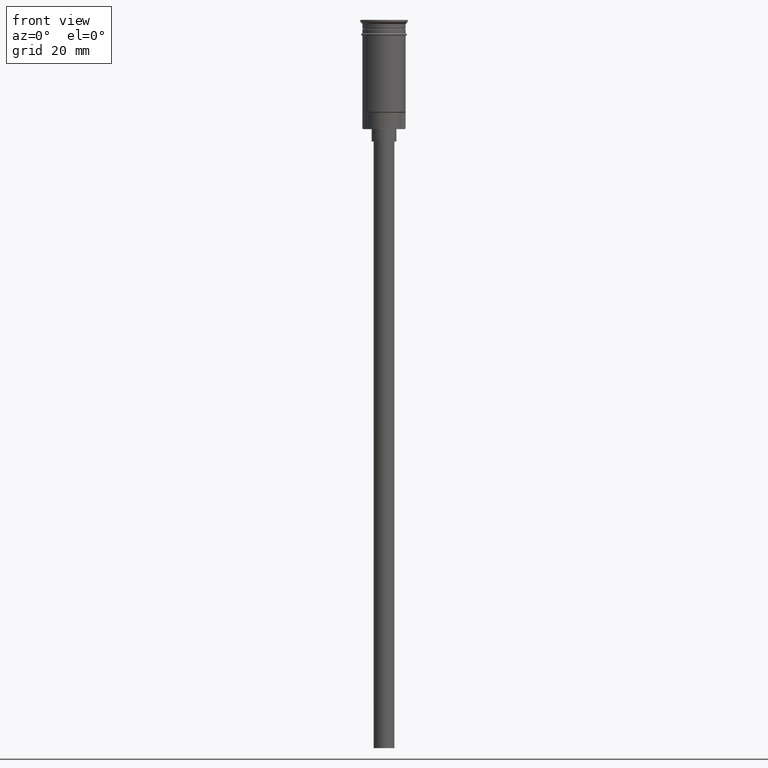
[diagram: clean part render]
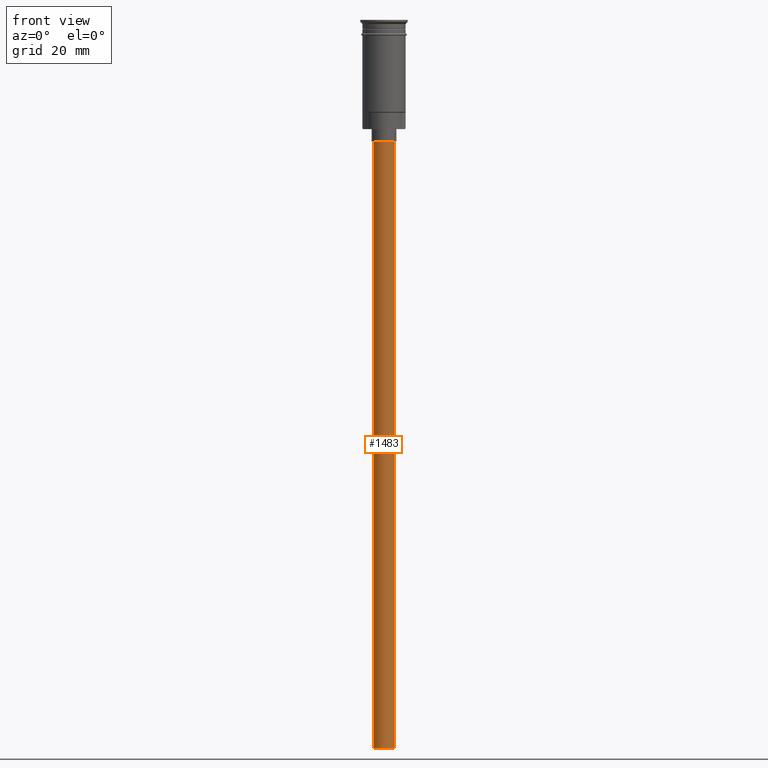
[diagram: same view with one face highlighted and labeled with its STEP entity id]
A machine part, front view. The second image highlights one B-rep face of the part: STEP entity #1483.
In plain terms, the highlighted cylindrical surface (edge-blend (fillet) strip) has radius 2.5 mm, axis along (-0, -0, 1).
Its self-contained STEP definition (entity closure, byte-faithful):
#33 = AXIS2_PLACEMENT_3D ( 'NONE', #736, #743, #255 ) ;
#90 = VERTEX_POINT ( 'NONE', #980 ) ;
#216 = EDGE_CURVE ( 'NONE', #90, #1032, #609, .T. ) ;
#255 = DIRECTION ( 'NONE',  ( -1.000000000000000000, 0.000000000000000000, 0.000000000000000000 ) ) ;
#312 = VECTOR ( 'NONE', #1316, 1000.000000000000000 ) ;
#461 = CARTESIAN_POINT ( 'NONE',  ( 2.500000000000000000, 0.000000000000000000, -176.5000000000000000 ) ) ;
#468 = ORIENTED_EDGE ( 'NONE', *, *, #216, .T. ) ;
#476 = DIRECTION ( 'NONE',  ( 1.000000000000000000, 0.000000000000000000, 0.000000000000000000 ) ) ;
#516 = CARTESIAN_POINT ( 'NONE',  ( -2.500000000000000000, 3.061616997868383141E-16, -29.50000000000000000 ) ) ;
#586 = VECTOR ( 'NONE', #1435, 1000.000000000000000 ) ;
#598 = DIRECTION ( 'NONE',  ( -1.000000000000000000, 0.000000000000000000, 0.000000000000000000 ) ) ;
#609 = CIRCLE ( 'NONE', #905, 2.500000000000000000 ) ;
#735 = EDGE_CURVE ( 'NONE', #1460, #1032, #1050, .T. ) ;
#736 = CARTESIAN_POINT ( 'NONE',  ( 0.000000000000000000, 0.000000000000000000, -176.5000000000000000 ) ) ;
#743 = DIRECTION ( 'NONE',  ( 0.000000000000000000, 0.000000000000000000, -1.000000000000000000 ) ) ;
#757 = DIRECTION ( 'NONE',  ( 0.000000000000000000, 0.000000000000000000, -1.000000000000000000 ) ) ;
#836 = ORIENTED_EDGE ( 'NONE', *, *, #1326, .T. ) ;
#884 = CIRCLE ( 'NONE', #33, 2.500000000000000000 ) ;
#905 = AXIS2_PLACEMENT_3D ( 'NONE', #1595, #757, #598 ) ;
#930 = AXIS2_PLACEMENT_3D ( 'NONE', #1476, #1496, #476 ) ;
#980 = CARTESIAN_POINT ( 'NONE',  ( 2.500000000000000000, 0.000000000000000000, -29.50000000000000000 ) ) ;
#1032 = VERTEX_POINT ( 'NONE', #516 ) ;
#1050 = LINE ( 'NONE', #1541, #586 ) ;
#1071 = EDGE_CURVE ( 'NONE', #1328, #1460, #884, .T. ) ;
#1095 = LINE ( 'NONE', #461, #312 ) ;
#1247 = CYLINDRICAL_SURFACE ( 'NONE', #930, 2.500000000000000000 ) ;
#1248 = EDGE_LOOP ( 'NONE', ( #1570, #1539, #836, #468 ) ) ;
#1316 = DIRECTION ( 'NONE',  ( -0.000000000000000000, -0.000000000000000000, 1.000000000000000000 ) ) ;
#1326 = EDGE_CURVE ( 'NONE', #1328, #90, #1095, .T. ) ;
#1328 = VERTEX_POINT ( 'NONE', #1468 ) ;
#1374 = FACE_OUTER_BOUND ( 'NONE', #1248, .T. ) ;
#1435 = DIRECTION ( 'NONE',  ( -0.000000000000000000, -0.000000000000000000, 1.000000000000000000 ) ) ;
#1460 = VERTEX_POINT ( 'NONE', #1601 ) ;
#1468 = CARTESIAN_POINT ( 'NONE',  ( 2.500000000000000000, 0.000000000000000000, -176.5000000000000000 ) ) ;
#1476 = CARTESIAN_POINT ( 'NONE',  ( 0.000000000000000000, 0.000000000000000000, -176.5000000000000000 ) ) ;
#1483 = ADVANCED_FACE ( 'NONE', ( #1374 ), #1247, .T. ) ;
#1496 = DIRECTION ( 'NONE',  ( -0.000000000000000000, -0.000000000000000000, 1.000000000000000000 ) ) ;
#1539 = ORIENTED_EDGE ( 'NONE', *, *, #1071, .F. ) ;
#1541 = CARTESIAN_POINT ( 'NONE',  ( -2.500000000000000000, 3.061616997868383141E-16, -176.5000000000000000 ) ) ;
#1570 = ORIENTED_EDGE ( 'NONE', *, *, #735, .F. ) ;
#1595 = CARTESIAN_POINT ( 'NONE',  ( 0.000000000000000000, 0.000000000000000000, -29.50000000000000000 ) ) ;
#1601 = CARTESIAN_POINT ( 'NONE',  ( -2.500000000000000000, 3.061616997868383141E-16, -176.5000000000000000 ) ) ;